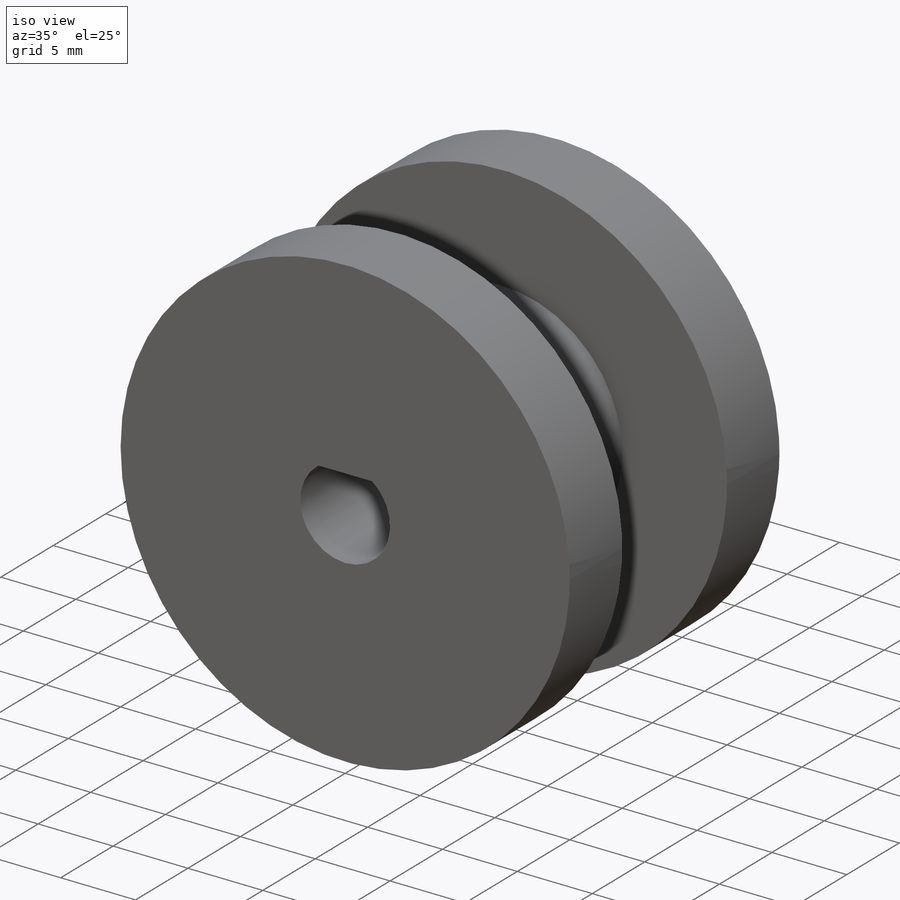
[diagram: iso view]
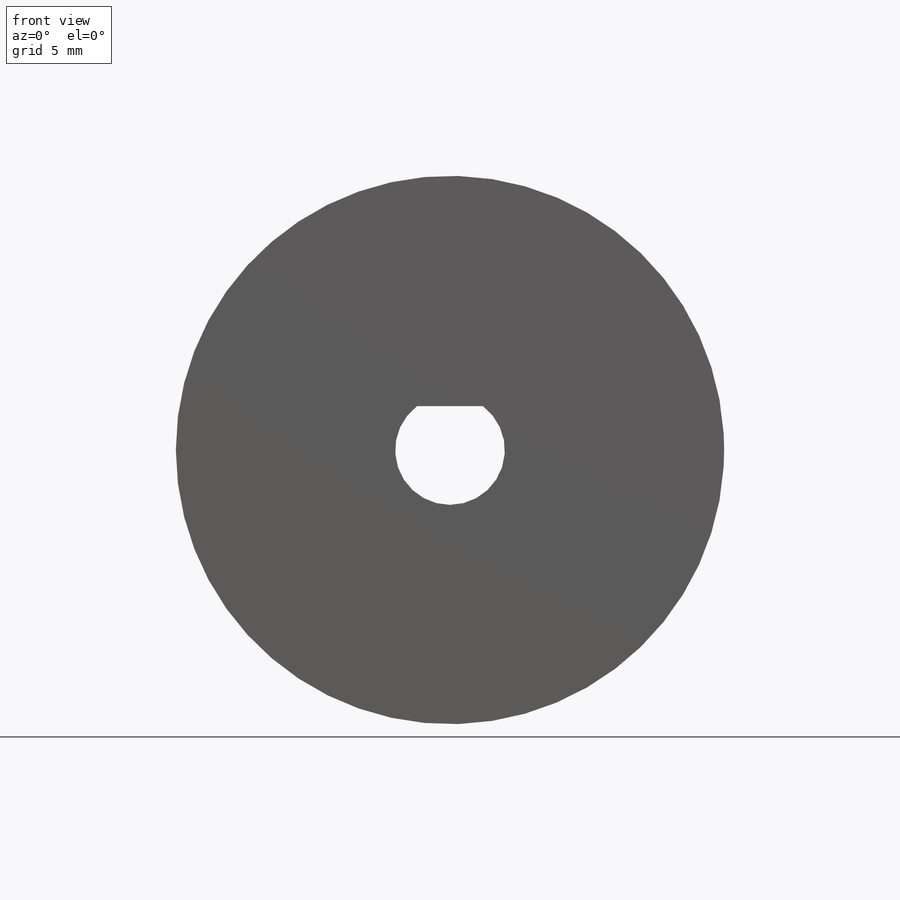
[diagram: front view]
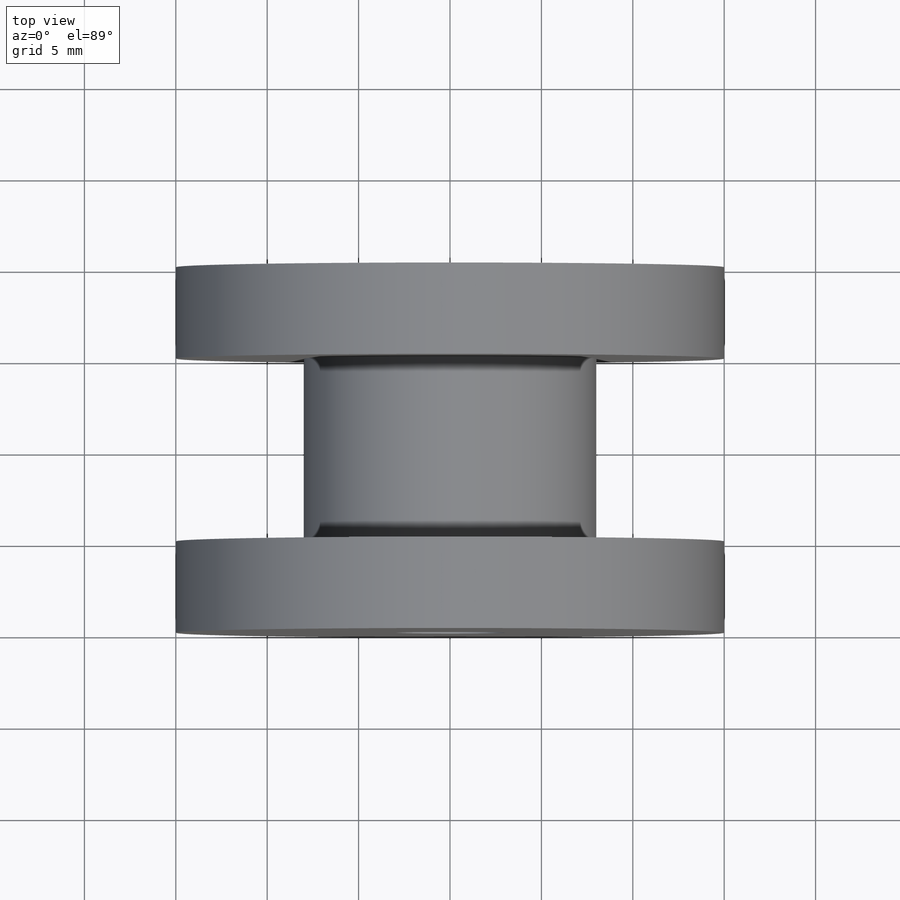
[diagram: top view]
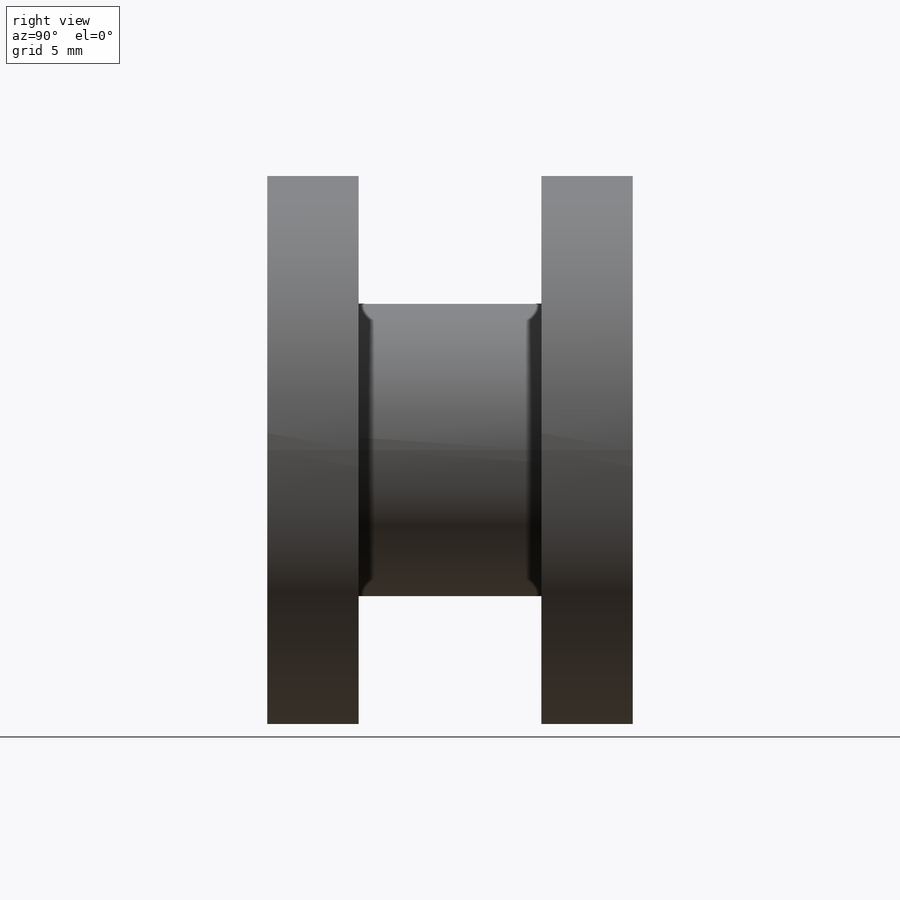
[diagram: right view]
SOLIDWORKS PART (.sldprt)
format: sldprt  version: not decoded by parser v0  size: 169,472 bytes
history: native  units: mm
features: sketch x4, extrude x4, plane x3, material x1 (+10 scaffold rows collapsed)
feature tree (22):
  scaffold x10  (default folders/planes/origin — collapsed)
  material  "Matériau <non spécifié>"
  plane  "Plan de face"
  plane  "Plan de dessus"
  plane  "Plan de droite"
  sketch  "Esquisse1"  dims[D2=6.0mm D3=30.0mm D1=2.4mm]
  extrude  "Boss.-Extru.2"  Depth=5mm
  sketch  "Esquisse3"  dims[D1=5.0mm]
  extrude  "Boss.-Extru.3"  Depth=10mm
  sketch  "Esquisse4"  dims[D1=30.0mm]
  extrude  "Boss.-Extru.4"  Depth=5mm
  extrude  "Boss.-Extru.5"  [1 undecoded]
  sketch  "Esquisse1<4>"  dims[D1=20.0mm]
decode coverage: 7 of 8 modeling features carry decoded parameters
note: 1 parameter value undecoded
note: suppression state not decoded; provenance and decode notes live in map.json
